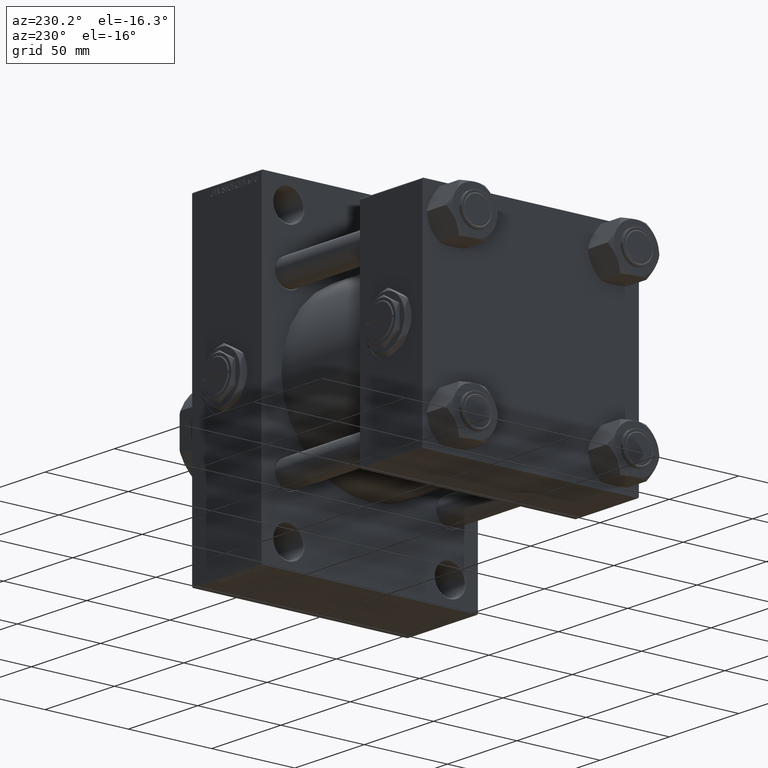
[diagram: clean part render]
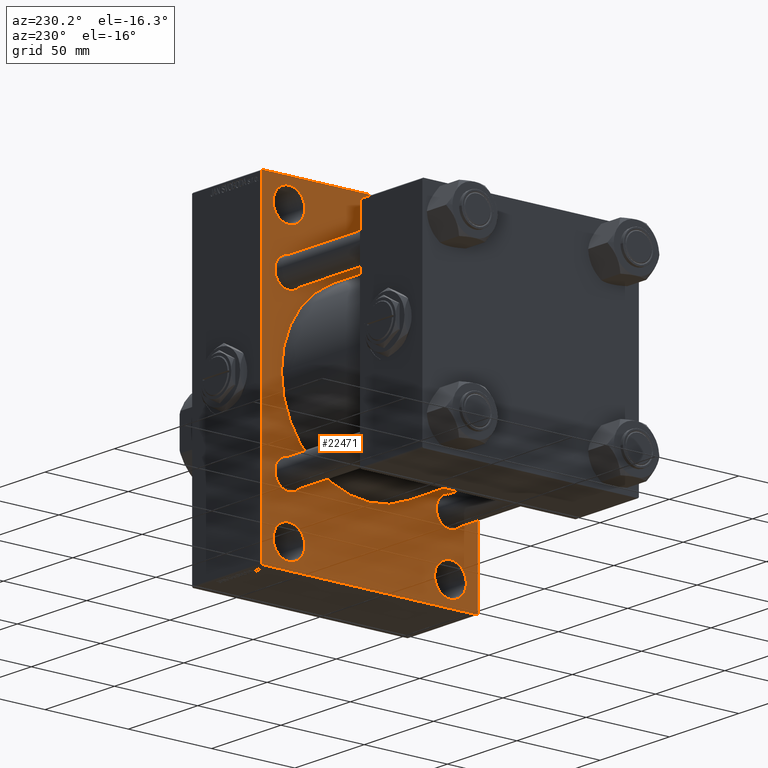
[diagram: same view with one face highlighted and labeled with its STEP entity id]
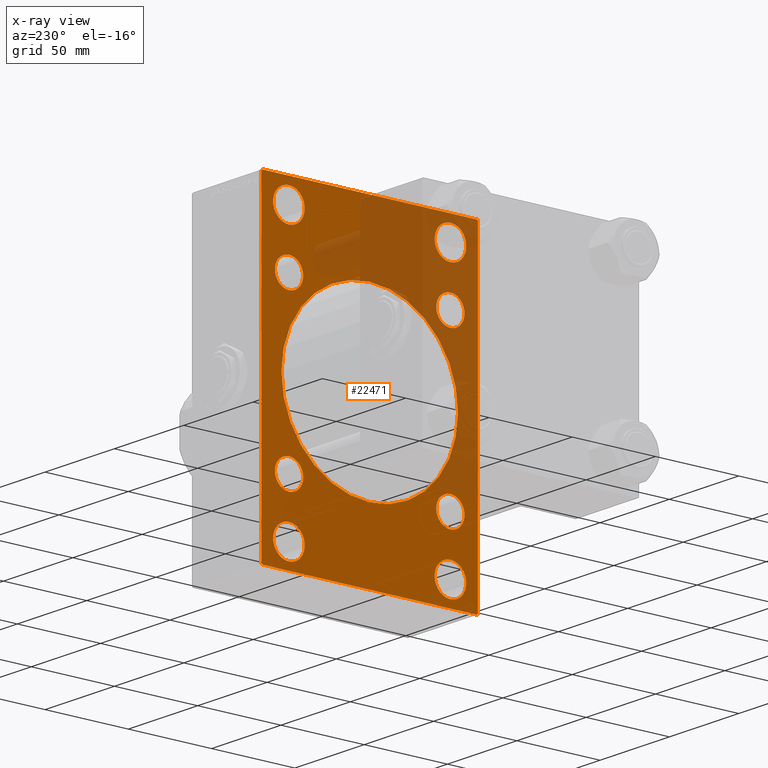
[diagram: x-ray of the same camera — body ghosted, the highlighted face saturated]
A machine part, auxiliary view. The second image highlights one B-rep face of the part: STEP entity #22471.
The next image is the same camera in x-ray: the body ghosted, the highlighted face saturated — about 35% of this face is hidden behind the body in this view.
In plain terms, the highlighted planar face has unit normal (-1, 0, 0).
Its self-contained STEP definition (entity closure, byte-faithful):
#879 = VERTEX_POINT ( 'NONE', #4461 ) ;
#946 = ORIENTED_EDGE ( 'NONE', *, *, #27006, .T. ) ;
#1354 = ORIENTED_EDGE ( 'NONE', *, *, #26704, .T. ) ;
#1391 = ORIENTED_EDGE ( 'NONE', *, *, #24087, .T. ) ;
#1403 = CARTESIAN_POINT ( 'NONE',  ( 115.9999999999999858, 48.45000000000000995, -48.45000000000001705 ) ) ;
#1656 = LINE ( 'NONE', #5942, #21564 ) ;
#1908 = EDGE_CURVE ( 'NONE', #46823, #47171, #42940, .T. ) ;
#2181 = ORIENTED_EDGE ( 'NONE', *, *, #46028, .T. ) ;
#2235 = AXIS2_PLACEMENT_3D ( 'NONE', #13341, #17901, #40933 ) ;
#2372 = CARTESIAN_POINT ( 'NONE',  ( 115.9999999999999858, 48.50000000000000711, -81.00000000000001421 ) ) ;
#2839 = DIRECTION ( 'NONE',  ( 0.000000000000000000, 0.000000000000000000, 1.000000000000000000 ) ) ;
#2867 = AXIS2_PLACEMENT_3D ( 'NONE', #1403, #39661, #8758 ) ;
#3052 = CARTESIAN_POINT ( 'NONE',  ( 115.9999999999999858, 64.99999999999998579, -95.00000000000001421 ) ) ;
#3161 = DIRECTION ( 'NONE',  ( -0.000000000000000000, 0.7071067811865378028, 0.7071067811865573427 ) ) ;
#3241 = LINE ( 'NONE', #22976, #27989 ) ;
#3385 = CARTESIAN_POINT ( 'NONE',  ( 115.9999999999999858, -48.44999999999999574, 48.45000000000003126 ) ) ;
#3647 = DIRECTION ( 'NONE',  ( -1.000000000000000000, 0.000000000000000000, -0.000000000000000000 ) ) ;
#3801 = EDGE_CURVE ( 'NONE', #14431, #19567, #3916, .T. ) ;
#3916 = LINE ( 'NONE', #6943, #27660 ) ;
#4238 = ORIENTED_EDGE ( 'NONE', *, *, #39859, .T. ) ;
#4243 = EDGE_LOOP ( 'NONE', ( #1391, #29857, #19434, #50052, #33336, #12054, #4238, #26437 ) ) ;
#4375 = VERTEX_POINT ( 'NONE', #25291 ) ;
#4408 = DIRECTION ( 'NONE',  ( -0.000000000000000000, 0.000000000000000000, 1.000000000000000000 ) ) ;
#4461 = CARTESIAN_POINT ( 'NONE',  ( 115.9999999999999858, -48.49999999999999289, -71.50000000000001421 ) ) ;
#4545 = ORIENTED_EDGE ( 'NONE', *, *, #1908, .T. ) ;
#4741 = ORIENTED_EDGE ( 'NONE', *, *, #43185, .T. ) ;
#4798 = AXIS2_PLACEMENT_3D ( 'NONE', #32396, #5522, #17178 ) ;
#5063 = CARTESIAN_POINT ( 'NONE',  ( 115.9999999999999858, -64.50000000000002842, 94.99999999999997158 ) ) ;
#5127 = CARTESIAN_POINT ( 'NONE',  ( 115.9999999999999858, -2.602085213965210642E-15, 53.00000000000000711 ) ) ;
#5163 = ORIENTED_EDGE ( 'NONE', *, *, #38841, .T. ) ;
#5522 = DIRECTION ( 'NONE',  ( 1.000000000000000000, -0.000000000000000000, 0.000000000000000000 ) ) ;
#5942 = CARTESIAN_POINT ( 'NONE',  ( 115.9999999999999858, -65.00000000000001421, 94.99999999999997158 ) ) ;
#6177 = VERTEX_POINT ( 'NONE', #49956 ) ;
#6287 = EDGE_LOOP ( 'NONE', ( #34345, #10411 ) ) ;
#6316 = EDGE_CURVE ( 'NONE', #19383, #44365, #24458, .T. ) ;
#6410 = AXIS2_PLACEMENT_3D ( 'NONE', #28468, #20366, #32015 ) ;
#6627 = DIRECTION ( 'NONE',  ( 1.000000000000000000, -0.000000000000000000, 0.000000000000000000 ) ) ;
#6943 = CARTESIAN_POINT ( 'NONE',  ( 115.9999999999999858, -79.75000000000089528, 79.74999999999867839 ) ) ;
#7274 = DIRECTION ( 'NONE',  ( -0.000000000000000000, -0.7071067811865573427, -0.7071067811865378028 ) ) ;
#7440 = FACE_BOUND ( 'NONE', #42029, .T. ) ;
#7536 = LINE ( 'NONE', #22988, #31349 ) ;
#7957 = FACE_BOUND ( 'NONE', #6287, .T. ) ;
#8294 = AXIS2_PLACEMENT_3D ( 'NONE', #16776, #9166, #43358 ) ;
#8618 = DIRECTION ( 'NONE',  ( 0.000000000000000000, 0.000000000000000000, 1.000000000000000000 ) ) ;
#8662 = CIRCLE ( 'NONE', #45063, 8.500000000000007105 ) ;
#8758 = DIRECTION ( 'NONE',  ( 0.000000000000000000, 0.000000000000000000, 1.000000000000000000 ) ) ;
#9142 = CARTESIAN_POINT ( 'NONE',  ( 115.9999999999999858, 48.50000000000000711, -90.50000000000002842 ) ) ;
#9166 = DIRECTION ( 'NONE',  ( 1.000000000000000000, -0.000000000000000000, 0.000000000000000000 ) ) ;
#9304 = CARTESIAN_POINT ( 'NONE',  ( 115.9999999999999858, -48.50000000000000000, 81.00000000000000000 ) ) ;
#9497 = DIRECTION ( 'NONE',  ( 0.000000000000000000, 0.000000000000000000, 1.000000000000000000 ) ) ;
#9561 = ORIENTED_EDGE ( 'NONE', *, *, #27428, .T. ) ;
#9959 = DIRECTION ( 'NONE',  ( 0.000000000000000000, 0.000000000000000000, 1.000000000000000000 ) ) ;
#10111 = CARTESIAN_POINT ( 'NONE',  ( 115.9999999999999858, 48.45000000000000995, -39.95000000000000284 ) ) ;
#10122 = CARTESIAN_POINT ( 'NONE',  ( 115.9999999999999858, -48.44999999999999574, 39.95000000000001705 ) ) ;
#10164 = CIRCLE ( 'NONE', #44935, 53.00000000000000711 ) ;
#10323 = AXIS2_PLACEMENT_3D ( 'NONE', #21475, #25795, #22217 ) ;
#10411 = ORIENTED_EDGE ( 'NONE', *, *, #22655, .T. ) ;
#10778 = VERTEX_POINT ( 'NONE', #17744 ) ;
#10865 = VERTEX_POINT ( 'NONE', #30143 ) ;
#11312 = DIRECTION ( 'NONE',  ( 0.000000000000000000, 0.000000000000000000, -1.000000000000000000 ) ) ;
#11348 = ORIENTED_EDGE ( 'NONE', *, *, #6316, .T. ) ;
#11384 = EDGE_CURVE ( 'NONE', #10778, #36500, #38402, .T. ) ;
#11443 = CARTESIAN_POINT ( 'NONE',  ( 115.9999999999999858, 64.99999999999997158, 94.49999999999997158 ) ) ;
#11497 = FACE_BOUND ( 'NONE', #17192, .T. ) ;
#11742 = CARTESIAN_POINT ( 'NONE',  ( 115.9999999999999858, -48.50000000000000000, 71.49999999999991473 ) ) ;
#12054 = ORIENTED_EDGE ( 'NONE', *, *, #18863, .T. ) ;
#12100 = AXIS2_PLACEMENT_3D ( 'NONE', #30770, #15293, #14788 ) ;
#12812 = EDGE_CURVE ( 'NONE', #28025, #16354, #32679, .T. ) ;
#13307 = AXIS2_PLACEMENT_3D ( 'NONE', #27032, #23480, #11312 ) ;
#13341 = CARTESIAN_POINT ( 'NONE',  ( 115.9999999999999858, -48.44999999999999574, -48.45000000000003126 ) ) ;
#13460 = CIRCLE ( 'NONE', #32073, 9.500000000000092371 ) ;
#13703 = CARTESIAN_POINT ( 'NONE',  ( 115.9999999999999858, 48.50000000000000711, 71.49999999999991473 ) ) ;
#13710 = AXIS2_PLACEMENT_3D ( 'NONE', #20491, #39732, #32891 ) ;
#13857 = DIRECTION ( 'NONE',  ( 0.000000000000000000, 0.000000000000000000, 1.000000000000000000 ) ) ;
#13984 = DIRECTION ( 'NONE',  ( 0.000000000000000000, 0.000000000000000000, -1.000000000000000000 ) ) ;
#14249 = CIRCLE ( 'NONE', #15087, 8.500000000000007105 ) ;
#14431 = VERTEX_POINT ( 'NONE', #24542 ) ;
#14502 = AXIS2_PLACEMENT_3D ( 'NONE', #31525, #3647, #4408 ) ;
#14691 = EDGE_CURVE ( 'NONE', #31584, #19984, #3241, .T. ) ;
#14788 = DIRECTION ( 'NONE',  ( 0.000000000000000000, 0.000000000000000000, 1.000000000000000000 ) ) ;
#14983 = VECTOR ( 'NONE', #17014, 1000.000000000000000 ) ;
#15087 = AXIS2_PLACEMENT_3D ( 'NONE', #3385, #23133, #15538 ) ;
#15293 = DIRECTION ( 'NONE',  ( 1.000000000000000000, -0.000000000000000000, 0.000000000000000000 ) ) ;
#15312 = CARTESIAN_POINT ( 'NONE',  ( 115.9999999999999858, -64.50000000000001421, -95.00000000000002842 ) ) ;
#15384 = EDGE_CURVE ( 'NONE', #43935, #41634, #43365, .T. ) ;
#15538 = DIRECTION ( 'NONE',  ( 0.000000000000000000, 0.000000000000000000, 1.000000000000000000 ) ) ;
#15799 = CARTESIAN_POINT ( 'NONE',  ( 115.9999999999999858, 64.99999999999998579, -94.50000000000002842 ) ) ;
#15817 = CIRCLE ( 'NONE', #2867, 8.500000000000007105 ) ;
#16021 = CARTESIAN_POINT ( 'NONE',  ( 115.9999999999999858, 48.50000000000000711, -71.50000000000001421 ) ) ;
#16354 = VERTEX_POINT ( 'NONE', #43001 ) ;
#16776 = CARTESIAN_POINT ( 'NONE',  ( 115.9999999999999858, 48.50000000000000711, 81.00000000000000000 ) ) ;
#16998 = EDGE_CURVE ( 'NONE', #47171, #46823, #8662, .T. ) ;
#17014 = DIRECTION ( 'NONE',  ( 0.000000000000000000, -1.000000000000000000, 0.000000000000000000 ) ) ;
#17178 = DIRECTION ( 'NONE',  ( 0.000000000000000000, 0.000000000000000000, 1.000000000000000000 ) ) ;
#17192 = EDGE_LOOP ( 'NONE', ( #1354, #28032 ) ) ;
#17744 = CARTESIAN_POINT ( 'NONE',  ( 115.9999999999999858, 3.888542821515762466E-15, -53.00000000000000711 ) ) ;
#17763 = CARTESIAN_POINT ( 'NONE',  ( 115.9999999999999858, -48.49999999999999289, -90.50000000000002842 ) ) ;
#17901 = DIRECTION ( 'NONE',  ( 1.000000000000000000, -0.000000000000000000, 0.000000000000000000 ) ) ;
#18863 = EDGE_CURVE ( 'NONE', #6177, #28762, #7536, .T. ) ;
#19383 = VERTEX_POINT ( 'NONE', #13703 ) ;
#19434 = ORIENTED_EDGE ( 'NONE', *, *, #27362, .F. ) ;
#19567 = VERTEX_POINT ( 'NONE', #5063 ) ;
#19984 = VERTEX_POINT ( 'NONE', #30300 ) ;
#20286 = DIRECTION ( 'NONE',  ( 1.000000000000000000, -0.000000000000000000, 0.000000000000000000 ) ) ;
#20366 = DIRECTION ( 'NONE',  ( 1.000000000000000000, -0.000000000000000000, 0.000000000000000000 ) ) ;
#20418 = DIRECTION ( 'NONE',  ( 0.000000000000000000, 0.000000000000000000, -1.000000000000000000 ) ) ;
#20491 = CARTESIAN_POINT ( 'NONE',  ( 115.9999999999999858, -48.44999999999999574, -48.45000000000003126 ) ) ;
#20695 = ORIENTED_EDGE ( 'NONE', *, *, #46492, .T. ) ;
#20903 = VERTEX_POINT ( 'NONE', #10111 ) ;
#21100 = DIRECTION ( 'NONE',  ( 0.000000000000000000, 0.000000000000000000, 1.000000000000000000 ) ) ;
#21156 = DIRECTION ( 'NONE',  ( 1.000000000000000000, -0.000000000000000000, 0.000000000000000000 ) ) ;
#21297 = LINE ( 'NONE', #37011, #14983 ) ;
#21475 = CARTESIAN_POINT ( 'NONE',  ( 115.9999999999999858, 48.50000000000000711, 81.00000000000000000 ) ) ;
#21564 = VECTOR ( 'NONE', #20418, 1000.000000000000000 ) ;
#21893 = ORIENTED_EDGE ( 'NONE', *, *, #28576, .T. ) ;
#22148 = ORIENTED_EDGE ( 'NONE', *, *, #46791, .T. ) ;
#22217 = DIRECTION ( 'NONE',  ( 0.000000000000000000, 0.000000000000000000, 1.000000000000000000 ) ) ;
#22471 = ADVANCED_FACE ( 'NONE', ( #30516, #7957, #7440, #22897, #11497, #27475, #38346, #38608, #46696, #35074 ), #35324, .T. ) ;
#22655 = EDGE_CURVE ( 'NONE', #48968, #879, #35543, .T. ) ;
#22734 = EDGE_LOOP ( 'NONE', ( #4741, #11348 ) ) ;
#22897 = FACE_BOUND ( 'NONE', #22734, .T. ) ;
#22976 = CARTESIAN_POINT ( 'NONE',  ( 115.9999999999999858, 79.74999999999913314, -79.75000000000132161 ) ) ;
#22988 = CARTESIAN_POINT ( 'NONE',  ( 115.9999999999999858, 79.74999999999997158, 79.74999999999997158 ) ) ;
#23133 = DIRECTION ( 'NONE',  ( 1.000000000000000000, -0.000000000000000000, 0.000000000000000000 ) ) ;
#23480 = DIRECTION ( 'NONE',  ( 1.000000000000000000, 0.000000000000000000, 0.000000000000000000 ) ) ;
#23575 = DIRECTION ( 'NONE',  ( 0.000000000000000000, -0.7071067811865474617, 0.7071067811865474617 ) ) ;
#24087 = EDGE_CURVE ( 'NONE', #19984, #44874, #29904, .T. ) ;
#24247 = CIRCLE ( 'NONE', #25878, 9.500000000000008882 ) ;
#24458 = CIRCLE ( 'NONE', #8294, 9.500000000000092371 ) ;
#24542 = CARTESIAN_POINT ( 'NONE',  ( 115.9999999999999858, -65.00000000000001421, 94.49999999999997158 ) ) ;
#24892 = CIRCLE ( 'NONE', #10323, 9.500000000000092371 ) ;
#25191 = CARTESIAN_POINT ( 'NONE',  ( 115.9999999999999858, -48.44999999999999574, -39.95000000000001705 ) ) ;
#25291 = CARTESIAN_POINT ( 'NONE',  ( 115.9999999999999858, -65.00000000000001421, -94.50000000000002842 ) ) ;
#25390 = CARTESIAN_POINT ( 'NONE',  ( 115.9999999999999858, -2.602085213965210642E-15, 0.000000000000000000 ) ) ;
#25795 = DIRECTION ( 'NONE',  ( 1.000000000000000000, -0.000000000000000000, 0.000000000000000000 ) ) ;
#25878 = AXIS2_PLACEMENT_3D ( 'NONE', #40346, #36804, #21100 ) ;
#25926 = DIRECTION ( 'NONE',  ( 1.000000000000000000, -0.000000000000000000, 0.000000000000000000 ) ) ;
#26038 = EDGE_LOOP ( 'NONE', ( #21893, #35406 ) ) ;
#26136 = EDGE_LOOP ( 'NONE', ( #2181, #9561 ) ) ;
#26437 = ORIENTED_EDGE ( 'NONE', *, *, #14691, .T. ) ;
#26528 = VECTOR ( 'NONE', #30090, 1000.000000000000000 ) ;
#26634 = CIRCLE ( 'NONE', #4798, 8.500000000000007105 ) ;
#26704 = EDGE_CURVE ( 'NONE', #16354, #28025, #14249, .T. ) ;
#27006 = EDGE_CURVE ( 'NONE', #46501, #41758, #13460, .T. ) ;
#27032 = CARTESIAN_POINT ( 'NONE',  ( 115.9999999999999858, -2.602085213965210642E-15, 0.000000000000000000 ) ) ;
#27362 = EDGE_CURVE ( 'NONE', #14431, #4375, #1656, .T. ) ;
#27428 = EDGE_CURVE ( 'NONE', #46450, #20903, #15817, .T. ) ;
#27475 = FACE_BOUND ( 'NONE', #37112, .T. ) ;
#27660 = VECTOR ( 'NONE', #3161, 1000.000000000000000 ) ;
#27803 = ORIENTED_EDGE ( 'NONE', *, *, #30966, .T. ) ;
#27989 = VECTOR ( 'NONE', #7274, 1000.000000000000000 ) ;
#28025 = VERTEX_POINT ( 'NONE', #10122 ) ;
#28032 = ORIENTED_EDGE ( 'NONE', *, *, #12812, .T. ) ;
#28468 = CARTESIAN_POINT ( 'NONE',  ( 115.9999999999999858, -48.49999999999999289, -81.00000000000001421 ) ) ;
#28576 = EDGE_CURVE ( 'NONE', #36500, #10778, #10164, .T. ) ;
#28666 = CARTESIAN_POINT ( 'NONE',  ( 115.9999999999999858, -48.50000000000000000, 90.50000000000009948 ) ) ;
#28762 = VERTEX_POINT ( 'NONE', #11443 ) ;
#28942 = EDGE_CURVE ( 'NONE', #44874, #4375, #34988, .T. ) ;
#29011 = CARTESIAN_POINT ( 'NONE',  ( 115.9999999999999858, 48.45000000000000995, -56.95000000000002416 ) ) ;
#29442 = DIRECTION ( 'NONE',  ( 1.000000000000000000, 0.000000000000000000, 0.000000000000000000 ) ) ;
#29857 = ORIENTED_EDGE ( 'NONE', *, *, #28942, .T. ) ;
#29904 = LINE ( 'NONE', #3052, #46686 ) ;
#30090 = DIRECTION ( 'NONE',  ( 0.000000000000000000, 7.304098846218135653E-17, -1.000000000000000000 ) ) ;
#30143 = CARTESIAN_POINT ( 'NONE',  ( 115.9999999999999858, -48.44999999999999574, -56.95000000000003837 ) ) ;
#30300 = CARTESIAN_POINT ( 'NONE',  ( 115.9999999999999858, 64.49999999999998579, -95.00000000000001421 ) ) ;
#30419 = CARTESIAN_POINT ( 'NONE',  ( 115.9999999999999858, -79.75000000000001421, -79.75000000000001421 ) ) ;
#30437 = DIRECTION ( 'NONE',  ( 0.000000000000000000, 0.000000000000000000, 1.000000000000000000 ) ) ;
#30516 = FACE_BOUND ( 'NONE', #37989, .T. ) ;
#30699 = CIRCLE ( 'NONE', #13710, 8.500000000000007105 ) ;
#30770 = CARTESIAN_POINT ( 'NONE',  ( 115.9999999999999858, -48.50000000000000000, 81.00000000000000000 ) ) ;
#30966 = EDGE_CURVE ( 'NONE', #41634, #43935, #39359, .T. ) ;
#31349 = VECTOR ( 'NONE', #42483, 1000.000000000000114 ) ;
#31525 = CARTESIAN_POINT ( 'NONE',  ( 115.9999999999999858, 0.000000000000000000, 0.000000000000000000 ) ) ;
#31584 = VERTEX_POINT ( 'NONE', #15799 ) ;
#32015 = DIRECTION ( 'NONE',  ( 0.000000000000000000, 0.000000000000000000, 1.000000000000000000 ) ) ;
#32073 = AXIS2_PLACEMENT_3D ( 'NONE', #9304, #40703, #13857 ) ;
#32396 = CARTESIAN_POINT ( 'NONE',  ( 115.9999999999999858, 48.45000000000000995, -48.45000000000001705 ) ) ;
#32679 = CIRCLE ( 'NONE', #35097, 8.500000000000007105 ) ;
#32891 = DIRECTION ( 'NONE',  ( 0.000000000000000000, 0.000000000000000000, 1.000000000000000000 ) ) ;
#33336 = ORIENTED_EDGE ( 'NONE', *, *, #34320, .F. ) ;
#34320 = EDGE_CURVE ( 'NONE', #6177, #19567, #21297, .T. ) ;
#34345 = ORIENTED_EDGE ( 'NONE', *, *, #47570, .T. ) ;
#34988 = LINE ( 'NONE', #30419, #48986 ) ;
#35074 = FACE_OUTER_BOUND ( 'NONE', #4243, .T. ) ;
#35097 = AXIS2_PLACEMENT_3D ( 'NONE', #41091, #49183, #2839 ) ;
#35324 = PLANE ( 'NONE',  #14502 ) ;
#35406 = ORIENTED_EDGE ( 'NONE', *, *, #11384, .T. ) ;
#35543 = CIRCLE ( 'NONE', #6410, 9.500000000000008882 ) ;
#35576 = CIRCLE ( 'NONE', #12100, 9.500000000000092371 ) ;
#35974 = CARTESIAN_POINT ( 'NONE',  ( 115.9999999999999858, 48.45000000000000995, 48.45000000000001705 ) ) ;
#36240 = VERTEX_POINT ( 'NONE', #25191 ) ;
#36500 = VERTEX_POINT ( 'NONE', #5127 ) ;
#36804 = DIRECTION ( 'NONE',  ( 1.000000000000000000, -0.000000000000000000, 0.000000000000000000 ) ) ;
#37011 = CARTESIAN_POINT ( 'NONE',  ( 115.9999999999999858, 64.99999999999997158, 94.99999999999997158 ) ) ;
#37112 = EDGE_LOOP ( 'NONE', ( #48498, #4545 ) ) ;
#37445 = CARTESIAN_POINT ( 'NONE',  ( 115.9999999999999858, 48.50000000000000711, 90.50000000000009948 ) ) ;
#37989 = EDGE_LOOP ( 'NONE', ( #20695, #946 ) ) ;
#38028 = CARTESIAN_POINT ( 'NONE',  ( 115.9999999999999858, 48.50000000000000711, -81.00000000000001421 ) ) ;
#38346 = FACE_BOUND ( 'NONE', #26136, .T. ) ;
#38402 = CIRCLE ( 'NONE', #13307, 53.00000000000000711 ) ;
#38563 = AXIS2_PLACEMENT_3D ( 'NONE', #38028, #6627, #30437 ) ;
#38608 = FACE_BOUND ( 'NONE', #46518, .T. ) ;
#38841 = EDGE_CURVE ( 'NONE', #36240, #10865, #41842, .T. ) ;
#39359 = CIRCLE ( 'NONE', #38563, 9.500000000000008882 ) ;
#39661 = DIRECTION ( 'NONE',  ( 1.000000000000000000, -0.000000000000000000, 0.000000000000000000 ) ) ;
#39666 = CARTESIAN_POINT ( 'NONE',  ( 115.9999999999999858, 48.45000000000000995, 48.45000000000001705 ) ) ;
#39732 = DIRECTION ( 'NONE',  ( 1.000000000000000000, -0.000000000000000000, 0.000000000000000000 ) ) ;
#39859 = EDGE_CURVE ( 'NONE', #28762, #31584, #49565, .T. ) ;
#40346 = CARTESIAN_POINT ( 'NONE',  ( 115.9999999999999858, -48.49999999999999289, -81.00000000000001421 ) ) ;
#40703 = DIRECTION ( 'NONE',  ( 1.000000000000000000, -0.000000000000000000, 0.000000000000000000 ) ) ;
#40933 = DIRECTION ( 'NONE',  ( 0.000000000000000000, 0.000000000000000000, 1.000000000000000000 ) ) ;
#41091 = CARTESIAN_POINT ( 'NONE',  ( 115.9999999999999858, -48.44999999999999574, 48.45000000000003126 ) ) ;
#41301 = AXIS2_PLACEMENT_3D ( 'NONE', #39666, #21156, #9497 ) ;
#41405 = CARTESIAN_POINT ( 'NONE',  ( 115.9999999999999858, 48.45000000000000995, 56.95000000000002416 ) ) ;
#41634 = VERTEX_POINT ( 'NONE', #16021 ) ;
#41758 = VERTEX_POINT ( 'NONE', #28666 ) ;
#41842 = CIRCLE ( 'NONE', #2235, 8.500000000000007105 ) ;
#42029 = EDGE_LOOP ( 'NONE', ( #27803, #44229 ) ) ;
#42483 = DIRECTION ( 'NONE',  ( 0.000000000000000000, 0.7071067811865474617, -0.7071067811865474617 ) ) ;
#42581 = AXIS2_PLACEMENT_3D ( 'NONE', #2372, #25926, #9959 ) ;
#42940 = CIRCLE ( 'NONE', #41301, 8.500000000000007105 ) ;
#43001 = CARTESIAN_POINT ( 'NONE',  ( 115.9999999999999858, -48.44999999999999574, 56.95000000000003837 ) ) ;
#43185 = EDGE_CURVE ( 'NONE', #44365, #19383, #24892, .T. ) ;
#43358 = DIRECTION ( 'NONE',  ( 0.000000000000000000, 0.000000000000000000, 1.000000000000000000 ) ) ;
#43365 = CIRCLE ( 'NONE', #42581, 9.500000000000008882 ) ;
#43935 = VERTEX_POINT ( 'NONE', #9142 ) ;
#44229 = ORIENTED_EDGE ( 'NONE', *, *, #15384, .T. ) ;
#44365 = VERTEX_POINT ( 'NONE', #37445 ) ;
#44874 = VERTEX_POINT ( 'NONE', #15312 ) ;
#44935 = AXIS2_PLACEMENT_3D ( 'NONE', #25390, #29442, #13984 ) ;
#45063 = AXIS2_PLACEMENT_3D ( 'NONE', #35974, #20286, #8618 ) ;
#46028 = EDGE_CURVE ( 'NONE', #20903, #46450, #26634, .T. ) ;
#46450 = VERTEX_POINT ( 'NONE', #29011 ) ;
#46492 = EDGE_CURVE ( 'NONE', #41758, #46501, #35576, .T. ) ;
#46501 = VERTEX_POINT ( 'NONE', #11742 ) ;
#46518 = EDGE_LOOP ( 'NONE', ( #5163, #22148 ) ) ;
#46686 = VECTOR ( 'NONE', #48631, 1000.000000000000000 ) ;
#46696 = FACE_BOUND ( 'NONE', #26038, .T. ) ;
#46791 = EDGE_CURVE ( 'NONE', #10865, #36240, #30699, .T. ) ;
#46823 = VERTEX_POINT ( 'NONE', #47309 ) ;
#47171 = VERTEX_POINT ( 'NONE', #41405 ) ;
#47309 = CARTESIAN_POINT ( 'NONE',  ( 115.9999999999999858, 48.45000000000000995, 39.95000000000000284 ) ) ;
#47570 = EDGE_CURVE ( 'NONE', #879, #48968, #24247, .T. ) ;
#48498 = ORIENTED_EDGE ( 'NONE', *, *, #16998, .T. ) ;
#48631 = DIRECTION ( 'NONE',  ( 0.000000000000000000, -1.000000000000000000, -1.067522139062650425E-16 ) ) ;
#48820 = CARTESIAN_POINT ( 'NONE',  ( 115.9999999999999858, 64.99999999999997158, 94.99999999999997158 ) ) ;
#48968 = VERTEX_POINT ( 'NONE', #17763 ) ;
#48986 = VECTOR ( 'NONE', #23575, 1000.000000000000114 ) ;
#49183 = DIRECTION ( 'NONE',  ( 1.000000000000000000, -0.000000000000000000, 0.000000000000000000 ) ) ;
#49565 = LINE ( 'NONE', #48820, #26528 ) ;
#49956 = CARTESIAN_POINT ( 'NONE',  ( 115.9999999999999858, 64.49999999999997158, 94.99999999999997158 ) ) ;
#50052 = ORIENTED_EDGE ( 'NONE', *, *, #3801, .T. ) ;